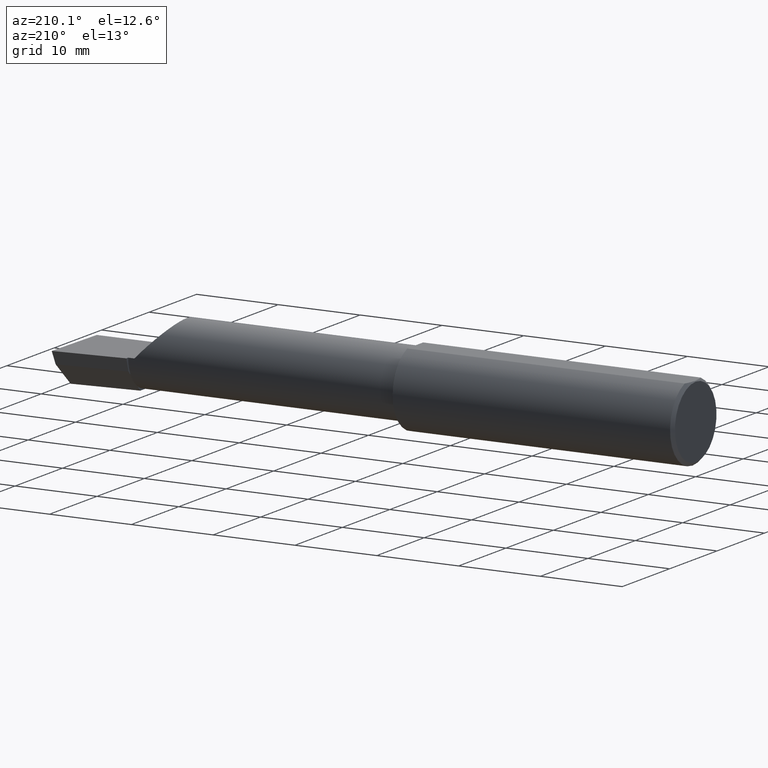
[diagram: clean part render]
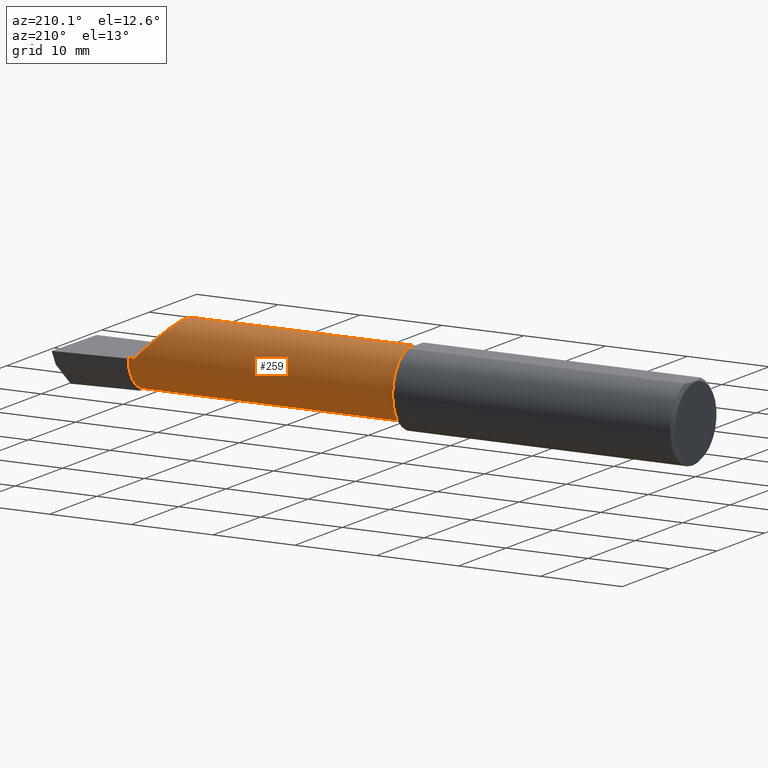
[diagram: same view with one face highlighted and labeled with its STEP entity id]
A machine part, auxiliary view. The second image highlights one B-rep face of the part: STEP entity #259.
In plain terms, the highlighted cylindrical surface (partial cylindrical patch) has radius 4.0653 mm, axis along (-1, 0, -0).
Its self-contained STEP definition (entity closure, byte-faithful):
#7 = VECTOR ( 'NONE', #227, 39.37007874015748143 ) ;
#20 = VECTOR ( 'NONE', #592, 39.37007874015748143 ) ;
#29 = ORIENTED_EDGE ( 'NONE', *, *, #156, .T. ) ;
#32 = VERTEX_POINT ( 'NONE', #614 ) ;
#37 = CARTESIAN_POINT ( 'NONE',  ( 2.629999999999999893, 0.1226499999999998147, -1.592040838891560883E-17 ) ) ;
#40 = VERTEX_POINT ( 'NONE', #225 ) ;
#44 = CARTESIAN_POINT ( 'NONE',  ( 1.360000000000000320, -0.1454917112299459747, 0.1180346748349057201 ) ) ;
#45 = VERTEX_POINT ( 'NONE', #44 ) ;
#47 = DIRECTION ( 'NONE',  ( 0.000000000000000000, -1.000000000000000000, 0.000000000000000000 ) ) ;
#52 = CARTESIAN_POINT ( 'NONE',  ( 2.009999999999999787, -0.1454917112299465021, 0.1180346748349054287 ) ) ;
#60 = CARTESIAN_POINT ( 'NONE',  ( 2.659999999999999698, 0.04400172171466197601, -0.1378033461200733056 ) ) ;
#66 = EDGE_CURVE ( 'NONE', #166, #254, #413, .T. ) ;
#71 = CARTESIAN_POINT ( 'NONE',  ( 1.360000000000000320, -0.03739999999999999575, 0.000000000000000000 ) ) ;
#72 = ORIENTED_EDGE ( 'NONE', *, *, #338, .F. ) ;
#73 = EDGE_CURVE ( 'NONE', #611, #501, #510, .T. ) ;
#81 =( BOUNDED_CURVE ( )  B_SPLINE_CURVE ( 3, ( #608, #178, #568, #37 ),
 .UNSPECIFIED., .F., .T. ) 
 B_SPLINE_CURVE_WITH_KNOTS ( ( 4, 4 ),
 ( 5.541729662751376573, 7.853981633974482790 ),
 .UNSPECIFIED. ) 
 CURVE ( )  GEOMETRIC_REPRESENTATION_ITEM ( )  RATIONAL_B_SPLINE_CURVE ( ( 1.000000000000000000, 0.6019254882129692064, 0.6019254882129692064, 1.000000000000000000 ) ) 
 REPRESENTATION_ITEM ( '' )  );
#84 = ORIENTED_EDGE ( 'NONE', *, *, #133, .T. ) ;
#89 = LINE ( 'NONE', #465, #7 ) ;
#90 = DIRECTION ( 'NONE',  ( 1.000000000000000000, -5.691349986800549142E-18, 0.000000000000000000 ) ) ;
#92 = CARTESIAN_POINT ( 'NONE',  ( 9.109005653874781230E-19, 0.1226499999999999535, 3.563723795045361633E-16 ) ) ;
#128 = DIRECTION ( 'NONE',  ( 1.000000000000000000, -5.691349986800549142E-18, 0.000000000000000000 ) ) ;
#132 = AXIS2_PLACEMENT_3D ( 'NONE', #136, #561, #47 ) ;
#133 = EDGE_CURVE ( 'NONE', #254, #498, #176, .T. ) ;
#136 = CARTESIAN_POINT ( 'NONE',  ( 2.659999999999999698, -0.03740000000000000269, 0.000000000000000000 ) ) ;
#153 = CARTESIAN_POINT ( 'NONE',  ( 2.629999999999999893, 0.1226499999999998147, -1.592040838891560883E-17 ) ) ;
#156 = EDGE_CURVE ( 'NONE', #45, #40, #291, .T. ) ;
#166 = VERTEX_POINT ( 'NONE', #153 ) ;
#171 = DIRECTION ( 'NONE',  ( -1.000000000000000000, 5.691349986800549142E-18, -0.000000000000000000 ) ) ;
#175 = ORIENTED_EDGE ( 'NONE', *, *, #73, .T. ) ;
#176 = CIRCLE ( 'NONE', #275, 0.1600500000000000533 ) ;
#178 = CARTESIAN_POINT ( 'NONE',  ( 2.402393788885674120, -0.02584108761840397950, 0.2276062111143233868 ) ) ;
#184 = ORIENTED_EDGE ( 'NONE', *, *, #508, .F. ) ;
#196 = CARTESIAN_POINT ( 'NONE',  ( 2.973833329693937433, -0.07789060880782650020, -0.1600499999999999423 ) ) ;
#199 = FACE_OUTER_BOUND ( 'NONE', #231, .T. ) ;
#205 = LINE ( 'NONE', #394, #20 ) ;
#209 = CARTESIAN_POINT ( 'NONE',  ( 2.659999999999999698, -0.03740000000000000269, 0.000000000000000000 ) ) ;
#210 = VERTEX_POINT ( 'NONE', #432 ) ;
#223 = VECTOR ( 'NONE', #389, 39.37007874015748143 ) ;
#224 = CARTESIAN_POINT ( 'NONE',  ( 2.659999999999999698, 0.1028057716897401719, -0.07719031082256661014 ) ) ;
#225 = CARTESIAN_POINT ( 'NONE',  ( 2.511965325165094853, -0.1454917112299475568, 0.1180346748349042352 ) ) ;
#226 = EDGE_CURVE ( 'NONE', #32, #210, #485, .T. ) ;
#227 = DIRECTION ( 'NONE',  ( -1.000000000000000000, 5.691349986800548372E-18, -0.000000000000000000 ) ) ;
#231 = EDGE_LOOP ( 'NONE', ( #258, #517, #72, #29, #490, #470, #84, #237, #175, #184 ) ) ;
#237 = ORIENTED_EDGE ( 'NONE', *, *, #347, .F. ) ;
#240 = CARTESIAN_POINT ( 'NONE',  ( 2.977223734188810589, -0.1454917112299465021, -0.1180346748349054287 ) ) ;
#242 = CARTESIAN_POINT ( 'NONE',  ( 2.659999999999999698, 0.1226500000000000368, 3.563723795045364098E-16 ) ) ;
#254 = VERTEX_POINT ( 'NONE', #242 ) ;
#255 = CIRCLE ( 'NONE', #426, 0.1600499999999998868 ) ;
#258 = ORIENTED_EDGE ( 'NONE', *, *, #226, .F. ) ;
#259 = ADVANCED_FACE ( 'NONE', ( #199 ), #435, .T. ) ;
#275 = AXIS2_PLACEMENT_3D ( 'NONE', #537, #438, #530 ) ;
#291 = LINE ( 'NONE', #52, #223 ) ;
#319 = VECTOR ( 'NONE', #90, 39.37007874015748143 ) ;
#338 = EDGE_CURVE ( 'NONE', #45, #606, #255, .T. ) ;
#347 = EDGE_CURVE ( 'NONE', #611, #498, #570, .T. ) ;
#364 = CARTESIAN_POINT ( 'NONE',  ( 2.659999999999999698, -0.03740000000000000269, -0.1600499999999999701 ) ) ;
#371 = EDGE_CURVE ( 'NONE', #32, #606, #205, .T. ) ;
#378 = CARTESIAN_POINT ( 'NONE',  ( 1.360000000000000320, -0.1454917112299460580, -0.1180346748349056646 ) ) ;
#385 = CARTESIAN_POINT ( 'NONE',  ( 0.000000000000000000, -0.03739999999999998881, 0.000000000000000000 ) ) ;
#389 = DIRECTION ( 'NONE',  ( 1.000000000000000000, -5.691349986800549142E-18, 0.000000000000000000 ) ) ;
#394 = CARTESIAN_POINT ( 'NONE',  ( 2.009999999999999787, -0.1454917112299465021, -0.1180346748349054287 ) ) ;
#412 = AXIS2_PLACEMENT_3D ( 'NONE', #385, #582, #535 ) ;
#413 = LINE ( 'NONE', #92, #319 ) ;
#426 = AXIS2_PLACEMENT_3D ( 'NONE', #71, #171, #447 ) ;
#432 = CARTESIAN_POINT ( 'NONE',  ( 2.974893613600466669, -0.03740000000000000269, -0.1600499999999999701 ) ) ;
#434 = EDGE_CURVE ( 'NONE', #40, #166, #81, .T. ) ;
#435 = CYLINDRICAL_SURFACE ( 'NONE', #412, 0.1600499999999999701 ) ;
#438 = DIRECTION ( 'NONE',  ( -1.000000000000000000, 5.691349986800549142E-18, -0.000000000000000000 ) ) ;
#443 = DIRECTION ( 'NONE',  ( 0.000000000000000000, -1.000000000000000000, 0.000000000000000000 ) ) ;
#447 = DIRECTION ( 'NONE',  ( 0.000000000000000000, -1.000000000000000000, 0.000000000000000000 ) ) ;
#465 = CARTESIAN_POINT ( 'NONE',  ( 3.000000000000000444, -0.03740000000000000269, -0.1600499999999999701 ) ) ;
#470 = ORIENTED_EDGE ( 'NONE', *, *, #66, .T. ) ;
#485 =( BOUNDED_CURVE ( )  B_SPLINE_CURVE ( 3, ( #240, #628, #196, #489 ),
 .UNSPECIFIED., .F., .T. ) 
 B_SPLINE_CURVE_WITH_KNOTS ( ( 4, 4 ),
 ( 5.751779107031514293, 6.493234751459714182 ),
 .UNSPECIFIED. ) 
 CURVE ( )  GEOMETRIC_REPRESENTATION_ITEM ( )  RATIONAL_B_SPLINE_CURVE ( ( 1.000000000000000000, 0.9547092712975354667, 0.9547092712975354667, 1.000000000000000000 ) ) 
 REPRESENTATION_ITEM ( '' )  );
#489 = CARTESIAN_POINT ( 'NONE',  ( 2.974893613600466669, -0.03740000000000000269, -0.1600499999999999701 ) ) ;
#490 = ORIENTED_EDGE ( 'NONE', *, *, #434, .T. ) ;
#498 = VERTEX_POINT ( 'NONE', #224 ) ;
#501 = VERTEX_POINT ( 'NONE', #364 ) ;
#508 = EDGE_CURVE ( 'NONE', #210, #501, #89, .T. ) ;
#510 = CIRCLE ( 'NONE', #132, 0.1600500000000000533 ) ;
#512 = AXIS2_PLACEMENT_3D ( 'NONE', #209, #128, #443 ) ;
#517 = ORIENTED_EDGE ( 'NONE', *, *, #371, .T. ) ;
#530 = DIRECTION ( 'NONE',  ( 0.000000000000000000, -1.000000000000000000, 0.000000000000000000 ) ) ;
#535 = DIRECTION ( 'NONE',  ( -5.691349986800549913E-18, -1.000000000000000000, 0.000000000000000000 ) ) ;
#537 = CARTESIAN_POINT ( 'NONE',  ( 2.659999999999999698, -0.03740000000000000269, 0.000000000000000000 ) ) ;
#561 = DIRECTION ( 'NONE',  ( -1.000000000000000000, 5.691349986800549142E-18, -0.000000000000000000 ) ) ;
#568 = CARTESIAN_POINT ( 'NONE',  ( 2.467758842172327327, 0.1226500000000000090, 0.1622411578276713173 ) ) ;
#570 = CIRCLE ( 'NONE', #512, 0.1600499999999999701 ) ;
#582 = DIRECTION ( 'NONE',  ( -1.000000000000000000, 5.691349986800549142E-18, -0.000000000000000000 ) ) ;
#592 = DIRECTION ( 'NONE',  ( -1.000000000000000000, 5.691349986800549142E-18, -0.000000000000000000 ) ) ;
#606 = VERTEX_POINT ( 'NONE', #378 ) ;
#608 = CARTESIAN_POINT ( 'NONE',  ( 2.511965325165094853, -0.1454917112299475568, 0.1180346748349042352 ) ) ;
#611 = VERTEX_POINT ( 'NONE', #60 ) ;
#614 = CARTESIAN_POINT ( 'NONE',  ( 2.977223734188810589, -0.1454917112299465021, -0.1180346748349054287 ) ) ;
#628 = CARTESIAN_POINT ( 'NONE',  ( 2.974646882977781015, -0.1156304438478837349, -0.1453804992321581502 ) ) ;